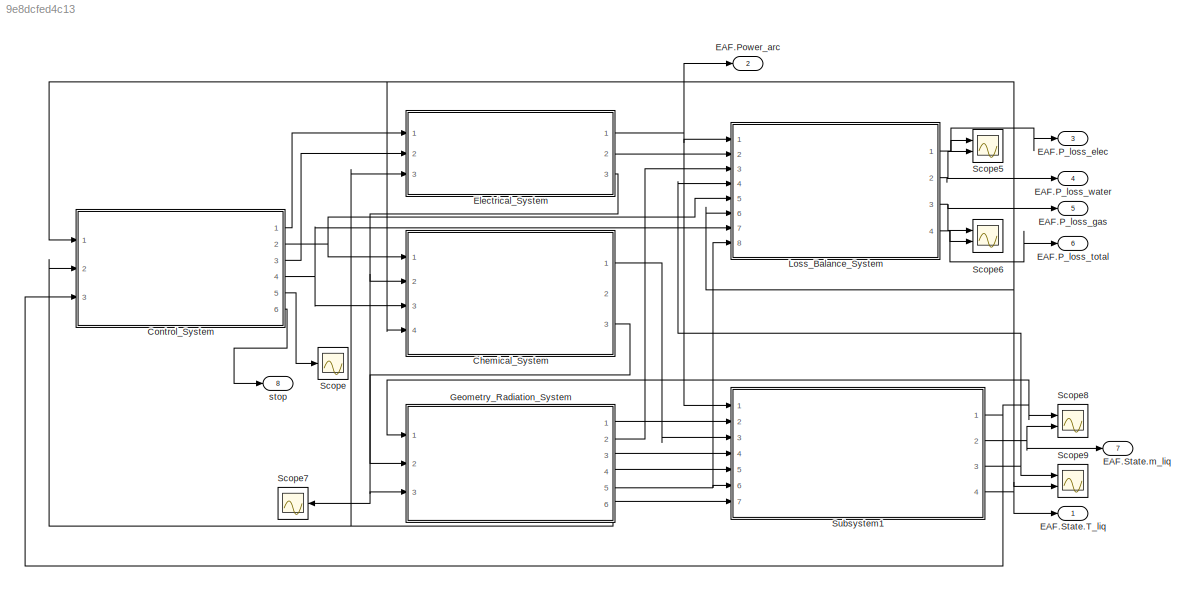
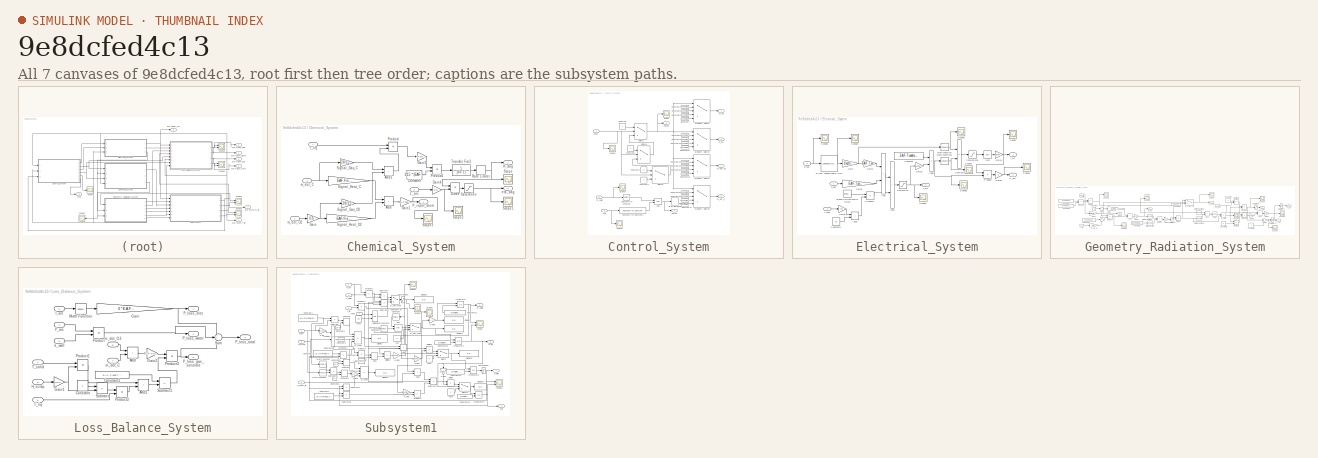
[diagram: thumbnail index - all 7 canvases of the model, root first then tree order]
MODEL slx_9e8dcfed4c13
KIND model
CONFIG AbsTol = 1e-1
CONFIG EnableMultiTasking = off
CONFIG FixedStep = 1
CONFIG MaxStep = 1
CONFIG MinStep = 0.5
CONFIG RelTol = 1e-1
CONFIG SampleTimeConstraint = Unconstrained
CONFIG SolverName = ode5
CONFIG StartTime = 0.0
CONFIG StopTime = 3600
BLOCK [SubSystem] Chemical_System
  Ports = [4, 3]
  RequestExecContextInheritance = off
BLOCK [Sum] Chemical_System/Add
  IconShape = rectangular
  Ports = [2, 1]
BLOCK [Sum] Chemical_System/Add1
  IconShape = rectangular
  Ports = [2, 1]
BLOCK [Constant] Chemical_System/Constant
  Value = 115 * (EAF.Fixed.mu_slag^1.2) / (EAF.Fixed.sigma_slag^0.2 * EAF.Fixed.rho_slag * EAF.Fixed.D_B^0.9)
BLOCK [Product] Chemical_System/Divide
  Inputs = */
  Ports = [2, 1]
  SaturateOnIntegerOverflow = on
BLOCK [Gain] Chemical_System/Gain
  Gain = 0.75
BLOCK [Gain] Chemical_System/Gain1
  Gain = EAF.Tunable.eta_pc
BLOCK [Gain] Chemical_System/Gain3
  Gain = (8.314 / 101325) / (0.028 * EAF.Fixed.A_furnace)
BLOCK [Gain] Chemical_System/Gain4
  Gain = 0.01
BLOCK [Outport] Chemical_System/H_slag
  Port = 2
BLOCK [Inport] Chemical_System/L_arc
  Port = 2
BLOCK [Outport] Chemical_System/P_input_chem
BLOCK [Product] Chemical_System/Product
  Ports = [2, 1]
BLOCK [Product] Chemical_System/Product1
  Ports = [2, 1]
BLOCK [RateLimiter] Chemical_System/Rate Limiter
  FallingSlewLimit = -0.0001
  InitialCondition = 0.15
  RisingSlewLimit = 0.0006
  SampleTimeMode = inherited
BLOCK [Saturate] Chemical_System/Saturation
  LowerLimit = 0.001
  UpperLimit = 0.98
BLOCK [Scope] Chemical_System/Scope
  Floating = off
  NumInputPorts = 1
  Ports = [1]
  ScopeSpecificationString = Simulink.scopes.TimeScopeBlockCfg('CurrentConfiguration', extmgr.ConfigurationSet(extmgr.Configuration('Core','General UI',true),extmgr.Configuration('Core','Source UI',true),extmgr.Configuration('Sources','WiredSimulink',true,'DataLoggingVariableName','ScopeData1'),extmgr.Configuration('Visuals','Time Domain',true,'SerializedDisplays',{struct('MinYLimReal','-0.03695','MaxYLimReal','0.33256','YLab...<+1523ch>
BLOCK [Scope] Chemical_System/Scope1
  Floating = off
  NumInputPorts = 1
  Ports = [1]
  ScopeSpecificationString = Simulink.scopes.TimeScopeBlockCfg('CurrentConfiguration', extmgr.ConfigurationSet(extmgr.Configuration('Core','General UI',true),extmgr.Configuration('Core','Source UI',true),extmgr.Configuration('Sources','WiredSimulink',true,'DataLoggingVariableName','ScopeData2'),extmgr.Configuration('Visuals','Time Domain',true,'SerializedDisplays',{struct('MinYLimReal','-0.12137','MaxYLimReal','1.10238','YLab...<+1488ch>
BLOCK [Scope] Chemical_System/Scope2
  Floating = off
  NumInputPorts = 1
  Ports = [1]
  ScopeSpecificationString = Simulink.scopes.TimeScopeBlockCfg('CurrentConfiguration', extmgr.ConfigurationSet(extmgr.Configuration('Core','General UI',true),extmgr.Configuration('Core','Source UI',true),extmgr.Configuration('Sources','WiredSimulink',true,'DataLoggingVariableName','ScopeData11'),extmgr.Configuration('Visuals','Time Domain',true,'SerializedDisplays',{struct('MinYLimReal','0.14796','MaxYLimReal','0.25728','YLab...<+1515ch>
BLOCK [Scope] Chemical_System/Scope3
  Floating = off
  NumInputPorts = 1
  Ports = [1]
  ScopeSpecificationString = Simulink.scopes.TimeScopeBlockCfg('CurrentConfiguration', extmgr.ConfigurationSet(extmgr.Configuration('Core','General UI',true),extmgr.Configuration('Core','Source UI',true),extmgr.Configuration('Sources','WiredSimulink',true,'DataLoggingVariableName','ScopeData13'),extmgr.Configuration('Visuals','Time Domain',true,'SerializedDisplays',{struct('MinYLimReal','-697500.00000','MaxYLimReal','6277500....<+1559ch>
BLOCK [Gain] Chemical_System/Signal_Gas_C
  Gain = 28/12
BLOCK [Gain] Chemical_System/Signal_Gas_O2
  Gain = 28/12
BLOCK [Gain] Chemical_System/Signal_Heat_C
  Gain = EAF.Fixed.dH_C_O
BLOCK [Gain] Chemical_System/Signal_Heat_O2
  Gain = EAF.Fixed.dH_C_O
BLOCK [Inport] Chemical_System/T_liq
  Port = 4
BLOCK [TransferFcn] Chemical_System/Transfer Fcn3
  Denominator = [60 1]
  Numerator = 1
BLOCK [Outport] Chemical_System/eta_slag
  Port = 3
BLOCK [Inport] Chemical_System/m_dot_C
  Port = 3
BLOCK [Inport] Chemical_System/m_dot_O2
BLOCK [SubSystem] Control_System
  Ports = [3, 6]
  RequestExecContextInheritance = off
BLOCK [Logic] Control_System/AND
  AllPortsSameDT = off
  IconShape = distinctive
  OutDataTypeStr = boolean
  Ports = [2, 1]
BLOCK [Inport] Control_System/Alpha
  Port = 2
BLOCK [Reference] Control_System/Compare To Constant  REF=simulink/Logic and Bit
Operations/Compare
To Constant
  Ports = [1, 1]
  SourceBlock = simulink/Logic and Bit\nOperations/Compare\nTo Constant
  SourceProductBaseCode = SL
  SourceType = Compare To Constant
BLOCK [Reference] Control_System/Compare To Constant1  REF=simulink/Logic and Bit
Operations/Compare
To Constant
  Ports = [1, 1]
  SourceBlock = simulink/Logic and Bit\nOperations/Compare\nTo Constant
  SourceProductBaseCode = SL
  SourceType = Compare To Constant
BLOCK [Constant] Control_System/Constant
BLOCK [Constant] Control_System/Constant1
  Value = 2
BLOCK [Constant] Control_System/Constant10
  Value = EAF.Control.Stage3.Z_set
BLOCK [Constant] Control_System/Constant11
  Value = EAF.Control.Stage4.Z_set
BLOCK [Constant] Control_System/Constant12
  Value = EAF.Control.Stage3.O2
BLOCK [Constant] Control_System/Constant13
  Value = EAF.Control.Stage4.O2
BLOCK [Constant] Control_System/Constant14
  Value = EAF.Control.Stage1.O2
BLOCK [Constant] Control_System/Constant15
  Value = EAF.Control.Stage2.O2
BLOCK [Constant] Control_System/Constant16
  Value = EAF.Control.Stage3.C
BLOCK [Constant] Control_System/Constant17
  Value = EAF.Control.Stage4.C
BLOCK [Constant] Control_System/Constant18
  Value = EAF.Control.Stage1.C
BLOCK [Constant] Control_System/Constant19
  Value = EAF.Control.Stage2.C
BLOCK [Constant] Control_System/Constant2
  Value = 3
BLOCK [Constant] Control_System/Constant3
  Value = 4
BLOCK [Constant] Control_System/Constant4
  Value = EAF.Control.Stage1.k_tap
BLOCK [Constant] Control_System/Constant5
  Value = EAF.Control.Stage2.k_tap
BLOCK [Constant] Control_System/Constant6
  Value = EAF.Control.Stage3.k_tap
BLOCK [Constant] Control_System/Constant7
  Value = EAF.Control.Stage4.k_tap
BLOCK [Constant] Control_System/Constant8
  Value = EAF.Control.Stage1.Z_set
BLOCK [Constant] Control_System/Constant9
  Value = EAF.Control.Stage2.Z_set
BLOCK [MultiPortSwitch] Control_System/Multiport Switch
  InputSameDT = off
  Inputs = 4
  Ports = [5, 1]
  SaturateOnIntegerOverflow = off
BLOCK [MultiPortSwitch] Control_System/Multiport Switch1
  InputSameDT = off
  Inputs = 4
  Ports = [5, 1]
  SaturateOnIntegerOverflow = off
BLOCK [MultiPortSwitch] Control_System/Multiport Switch2
  InputSameDT = off
  Inputs = 4
  Ports = [5, 1]
  SaturateOnIntegerOverflow = off
BLOCK [MultiPortSwitch] Control_System/Multiport Switch3
  InputSameDT = off
  Inputs = 4
  Ports = [5, 1]
  SaturateOnIntegerOverflow = off
BLOCK [Outport] Control_System/Output
  Port = 6
BLOCK [Outport] Control_System/Phase
  Port = 5
BLOCK [Scope] Control_System/Scope
  Floating = off
  NumInputPorts = 1
  Ports = [1]
  ScopeSpecificationString = Simulink.scopes.TimeScopeBlockCfg('CurrentConfiguration', extmgr.ConfigurationSet(extmgr.Configuration('Core','General UI',true),extmgr.Configuration('Core','Source UI',true),extmgr.Configuration('Sources','WiredSimulink',true,'DataLoggingVariableName','ScopeData12'),extmgr.Configuration('Visuals','Time Domain',true,'SerializedDisplays',{struct('MinYLimReal','0.625','MaxYLimReal','4.375','YLabelRe...<+1383ch>
BLOCK [Scope] Control_System/Scope1
  Floating = off
  NumInputPorts = 1
  Ports = [1]
  ScopeSpecificationString = Simulink.scopes.TimeScopeBlockCfg('CurrentConfiguration', extmgr.ConfigurationSet(extmgr.Configuration('Core','General UI',true),extmgr.Configuration('Core','Source UI',true),extmgr.Configuration('Sources','WiredSimulink',true,'DataLoggingVariableName','ScopeData1'),extmgr.Configuration('Visuals','Time Domain',true,'SerializedDisplays',{struct('MinYLimReal','-0.12489','MaxYLimReal','1.12499','YLab...<+1399ch>
BLOCK [Scope] Control_System/Scope2
  Floating = off
  NumInputPorts = 1
  Ports = [1]
  ScopeSpecificationString = Simulink.scopes.TimeScopeBlockCfg('CurrentConfiguration', extmgr.ConfigurationSet(extmgr.Configuration('Core','General UI',true),extmgr.Configuration('Core','Source UI',true),extmgr.Configuration('Sources','WiredSimulink',true,'DataLoggingVariableName','ScopeData7'),extmgr.Configuration('Visuals','Time Domain',true,'SerializedDisplays',{struct('MinYLimReal','-12498.92633','MaxYLimReal','112499.880...<+1515ch>
BLOCK [Scope] Control_System/Scope3
  Floating = off
  NumInputPorts = 1
  Ports = [1]
  ScopeSpecificationString = Simulink.scopes.TimeScopeBlockCfg('CurrentConfiguration', extmgr.ConfigurationSet(extmgr.Configuration('Core','General UI',true),extmgr.Configuration('Core','Source UI',true),extmgr.Configuration('Sources','WiredSimulink',true,'DataLoggingVariableName','ScopeData8'),extmgr.Configuration('Visuals','Time Domain',true,'SerializedDisplays',{struct('MinYLimReal','1549.64882','MaxYLimReal','2106.19153',...<+1536ch>
BLOCK [Stop] Control_System/Stop Simulation
BLOCK [Switch] Control_System/Switch
  Criteria = u2 > Threshold
  InputSameDT = off
  SaturateOnIntegerOverflow = off
  Threshold = 0.95
BLOCK [Switch] Control_System/Switch1
  Criteria = u2 > Threshold
  InputSameDT = off
  SaturateOnIntegerOverflow = off
  Threshold = 0.1
BLOCK [Switch] Control_System/Switch2
  Criteria = u2 > Threshold
  InputSameDT = off
  SaturateOnIntegerOverflow = off
  Threshold = 0.01
BLOCK [Inport] Control_System/T_liq
BLOCK [Outport] Control_System/Z_set
  Port = 3
BLOCK [Outport] Control_System/k_tap
BLOCK [Outport] Control_System/m_dot_C
  Port = 4
BLOCK [Outport] Control_System/m_dot_O2
  Port = 2
BLOCK [Inport] Control_System/m_solid
  Port = 3
BLOCK [Outport] EAF.P_loss_elec
  Port = 3
  SignalName = EAF.P_loss_elec
BLOCK [Outport] EAF.P_loss_gas
  Port = 5
  SignalName = EAF.P_loss_gas
BLOCK [Outport] EAF.P_loss_total
  Port = 6
  SignalName = EAF.P_loss_total
BLOCK [Outport] EAF.P_loss_water
  Port = 4
  SignalName = EAF.P_loss_water
BLOCK [Outport] EAF.Power_arc
  Port = 2
  SignalName = EAF.Power_arc
BLOCK [Outport] EAF.State.T_liq
BLOCK [Outport] EAF.State.m_liq
  Port = 7
  SignalName = EAF.State.m_liq
BLOCK [SubSystem] Electrical_System
  Ports = [3, 3]
  RequestExecContextInheritance = off
BLOCK [Sum] Electrical_System/Add
  IconShape = rectangular
  Ports = [2, 1]
BLOCK [Sum] Electrical_System/Add1
  IconShape = rectangular
  Ports = [2, 1]
BLOCK [Sum] Electrical_System/Add2
  IconShape = rectangular
  Ports = [2, 1]
BLOCK [Sum] Electrical_System/Add3
  IconShape = rectangular
  Ports = [2, 1]
BLOCK [Inport] Electrical_System/Alpha
  Port = 3
BLOCK [Reference] Electrical_System/Band-Limited White Noise  REF=simulink/Sources/Band-Limited
White Noise
  Ports = [0, 1]
  SourceBlock = simulink/Sources/Band-Limited\nWhite Noise
  SourceProductBaseCode = SL
  SourceType = Band-Limited White Noise.
BLOCK [Constant] Electrical_System/Constant
  Value = EAF.Tunable.V_an_cat
BLOCK [Constant] Electrical_System/Constant1
  Value = 0.1
BLOCK [LookupNDDirect] Electrical_System/Direct Lookup Table (n-D)
  NumberOfTableDimensions = 1
  Ports = [1, 1]
  Table = EAF.Fixed.Tap_Lookup_V
BLOCK [Gain] Electrical_System/Gain
  Gain = 1/sqrt(3)
BLOCK [Gain] Electrical_System/Gain1
  Gain = EAF.Tunable.m_V
BLOCK [Gain] Electrical_System/Gain2
  Gain = EAF.Tunable.m_Z
BLOCK [Gain] Electrical_System/Gain3
  Gain = EAF.Tunable.E_field
BLOCK [Gain] Electrical_System/Gain4
  Gain = 1/EAF.Fixed.X_sys
BLOCK [Gain] Electrical_System/Gain5
  Gain = 3
BLOCK [Gain] Electrical_System/Gain6
  Gain = 0.9
BLOCK [Outport] Electrical_System/I_arc
  Port = 2
BLOCK [Outport] Electrical_System/L_arc
  Port = 3
BLOCK [Math] Electrical_System/Math Function
  Operator = square
  Ports = [1, 1]
BLOCK [Math] Electrical_System/Math Function1
  Operator = square
  Ports = [1, 1]
BLOCK [Outport] Electrical_System/P_arc
BLOCK [Product] Electrical_System/Product
  Ports = [2, 1]
BLOCK [Product] Electrical_System/Product1
  Ports = [2, 1]
BLOCK [Saturate] Electrical_System/Saturation
  LowerLimit = 0.01
  UpperLimit = inf
BLOCK [Saturate] Electrical_System/Saturation1
  LowerLimit = 0.01
  UpperLimit = inf
BLOCK [Scope] Electrical_System/Scope
  Floating = off
  NumInputPorts = 1
  Ports = [1]
  ScopeSpecificationString = Simulink.scopes.TimeScopeBlockCfg('CurrentConfiguration', extmgr.ConfigurationSet(extmgr.Configuration('Core','General UI',true),extmgr.Configuration('Core','Source UI',true),extmgr.Configuration('Sources','WiredSimulink',true),extmgr.Configuration('Visuals','Time Domain',true,'SerializedDisplays',{struct('MinYLimReal','33952.54267','MaxYLimReal','96518.19802','YLabelReal','','MinYLimMag','33952.5...<+1386ch>
BLOCK [Scope] Electrical_System/Scope1
  Floating = off
  NumInputPorts = 1
  Ports = [1]
  ScopeSpecificationString = Simulink.scopes.TimeScopeBlockCfg('CurrentConfiguration', extmgr.ConfigurationSet(extmgr.Configuration('Core','General UI',true),extmgr.Configuration('Core','Source UI',true),extmgr.Configuration('Sources','WiredSimulink',true,'DataLoggingVariableName','ScopeData1'),extmgr.Configuration('Visuals','Time Domain',true,'SerializedDisplays',{struct('MinYLimReal','43149395.28792','MaxYLimReal','10694925...<+1499ch>
BLOCK [Scope] Electrical_System/Scope2
  Floating = off
  NumInputPorts = 1
  Ports = [1]
  ScopeSpecificationString = Simulink.scopes.TimeScopeBlockCfg('CurrentConfiguration', extmgr.ConfigurationSet(extmgr.Configuration('Core','General UI',true),extmgr.Configuration('Core','Source UI',true),extmgr.Configuration('Sources','WiredSimulink',true,'DataLoggingVariableName','ScopeData1'),extmgr.Configuration('Visuals','Time Domain',true,'SerializedDisplays',{struct('MinYLimReal','1.625','MaxYLimReal','5.375','YLabelRea...<+1493ch>
BLOCK [Scope] Electrical_System/Scope3
  Floating = off
  NumInputPorts = 1
  Ports = [1]
  ScopeSpecificationString = Simulink.scopes.TimeScopeBlockCfg('CurrentConfiguration', extmgr.ConfigurationSet(extmgr.Configuration('Core','General UI',true),extmgr.Configuration('Core','Source UI',true),extmgr.Configuration('Sources','WiredSimulink',true,'DataLoggingVariableName','ScopeData2'),extmgr.Configuration('Visuals','Time Domain',true,'SerializedDisplays',{struct('MinYLimReal','575.00000','MaxYLimReal','825.00000','Y...<+1548ch>
BLOCK [Scope] Electrical_System/Scope4
  Floating = off
  NumInputPorts = 1
  Ports = [1]
  ScopeSpecificationString = Simulink.scopes.TimeScopeBlockCfg('CurrentConfiguration', extmgr.ConfigurationSet(extmgr.Configuration('Core','General UI',true),extmgr.Configuration('Core','Source UI',true),extmgr.Configuration('Sources','WiredSimulink',true,'DataLoggingVariableName','ScopeData4'),extmgr.Configuration('Visuals','Time Domain',true,'SerializedDisplays',{struct('MinYLimReal','14.79611','MaxYLimReal','25.72823','YLa...<+1406ch>
BLOCK [Scope] Electrical_System/Scope5
  Floating = off
  NumInputPorts = 1
  Ports = [1]
  ScopeSpecificationString = Simulink.scopes.TimeScopeBlockCfg('CurrentConfiguration', extmgr.ConfigurationSet(extmgr.Configuration('Core','General UI',true),extmgr.Configuration('Core','Source UI',true),extmgr.Configuration('Sources','WiredSimulink',true,'DataLoggingVariableName','ScopeData3'),extmgr.Configuration('Visuals','Time Domain',true,'SerializedDisplays',{struct('MinYLimReal','259.16197','MaxYLimReal','422.05057','Y...<+1527ch>
BLOCK [Scope] Electrical_System/Scope6
  Floating = off
  NumInputPorts = 1
  Ports = [1]
  ScopeSpecificationString = Simulink.scopes.TimeScopeBlockCfg('CurrentConfiguration', extmgr.ConfigurationSet(extmgr.Configuration('Core','General UI',true),extmgr.Configuration('Core','Source UI',true),extmgr.Configuration('Sources','WiredSimulink',true,'DataLoggingVariableName','ScopeData4'),extmgr.Configuration('Visuals','Time Domain',true,'SerializedDisplays',{struct('MinYLimReal','108333.33333','MaxYLimReal','225000.000...<+1560ch>
BLOCK [Scope] Electrical_System/Scope7
  Floating = off
  NumInputPorts = 1
  Ports = [1]
  ScopeSpecificationString = Simulink.scopes.TimeScopeBlockCfg('CurrentConfiguration', extmgr.ConfigurationSet(extmgr.Configuration('Core','General UI',true),extmgr.Configuration('Core','Source UI',true),extmgr.Configuration('Sources','WiredSimulink',true,'DataLoggingVariableName','ScopeData5'),extmgr.Configuration('Visuals','Time Domain',true,'SerializedDisplays',{struct('MinYLimReal','64722.94774','MaxYLimReal','176123.3965...<+1557ch>
BLOCK [Sqrt] Electrical_System/Sqrt
BLOCK [Sum] Electrical_System/Subtract
  IconShape = rectangular
  Inputs = +-
  Ports = [2, 1]
BLOCK [Inport] Electrical_System/Z_set
  Port = 2
BLOCK [Inport] Electrical_System/k_tap
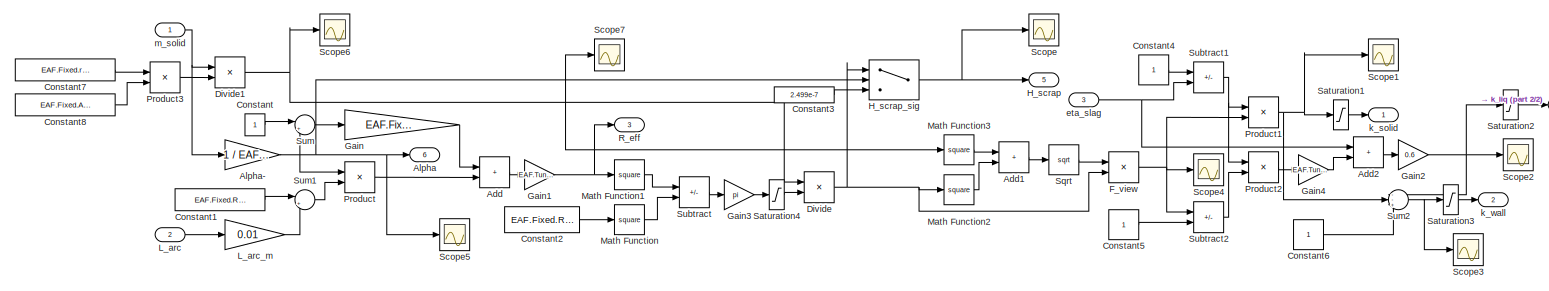
[diagram: Geometry_Radiation_System - part 1/2, most of the canvas]
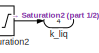
[diagram: Geometry_Radiation_System - part 2/2, middle right region]
BLOCK [SubSystem] Geometry_Radiation_System
  Ports = [3, 6]
  RequestExecContextInheritance = off
BLOCK [Sum] Geometry_Radiation_System/Add
  IconShape = rectangular
  Ports = [2, 1]
BLOCK [Sum] Geometry_Radiation_System/Add1
  IconShape = rectangular
  Ports = [2, 1]
BLOCK [Sum] Geometry_Radiation_System/Add2
  IconShape = rectangular
  Ports = [2, 1]
BLOCK [Outport] Geometry_Radiation_System/Alpha
  Port = 6
BLOCK [Gain] Geometry_Radiation_System/Alpha-
  Gain = 1 / EAF.State.m_solid_0
BLOCK [Constant] Geometry_Radiation_System/Constant
BLOCK [Constant] Geometry_Radiation_System/Constant1
  Value = EAF.Fixed.R_ele
BLOCK [Constant] Geometry_Radiation_System/Constant2
  Value = EAF.Fixed.R_fur
BLOCK [Constant] Geometry_Radiation_System/Constant3
  Value = 2.499e-7
BLOCK [Constant] Geometry_Radiation_System/Constant4
BLOCK [Constant] Geometry_Radiation_System/Constant5
BLOCK [Constant] Geometry_Radiation_System/Constant6
BLOCK [Constant] Geometry_Radiation_System/Constant7
  Value = EAF.Fixed.rho_solid
BLOCK [Constant] Geometry_Radiation_System/Constant8
  Value = EAF.Fixed.A_furnace
BLOCK [Product] Geometry_Radiation_System/Divide
  Inputs = */
  Ports = [2, 1]
BLOCK [Product] Geometry_Radiation_System/Divide1
  Inputs = */
  Ports = [2, 1]
BLOCK [Product] Geometry_Radiation_System/F_view
  Inputs = /*
  Ports = [2, 1]
BLOCK [Gain] Geometry_Radiation_System/Gain
  Gain = EAF.Fixed.R_fur
BLOCK [Gain] Geometry_Radiation_System/Gain1
  Gain = EAF.Tunable.k_geo
BLOCK [Gain] Geometry_Radiation_System/Gain2
  Gain = 0.6
BLOCK [Gain] Geometry_Radiation_System/Gain3
  Gain = pi
BLOCK [Gain] Geometry_Radiation_System/Gain4
  Gain = EAF.Tunable.k_bottom
BLOCK [Outport] Geometry_Radiation_System/H_scrap
  Port = 5
BLOCK [Switch] Geometry_Radiation_System/H_scrap_sig
  Criteria = u2 > Threshold
  InputSameDT = off
  SaturateOnIntegerOverflow = off
BLOCK [Inport] Geometry_Radiation_System/L_arc
  Port = 2
BLOCK [Gain] Geometry_Radiation_System/L_arc_m
  Gain = 0.01
BLOCK [Math] Geometry_Radiation_System/Math Function
  Operator = square
  Ports = [1, 1]
BLOCK [Math] Geometry_Radiation_System/Math Function1
  Operator = square
  Ports = [1, 1]
BLOCK [Math] Geometry_Radiation_System/Math Function2
  Operator = square
  Ports = [1, 1]
BLOCK [Math] Geometry_Radiation_System/Math Function3
  Operator = square
  Ports = [1, 1]
BLOCK [Product] Geometry_Radiation_System/Product
  Ports = [2, 1]
BLOCK [Product] Geometry_Radiation_System/Product1
  Ports = [2, 1]
BLOCK [Product] Geometry_Radiation_System/Product2
  Ports = [2, 1]
BLOCK [Product] Geometry_Radiation_System/Product3
  Ports = [2, 1]
BLOCK [Outport] Geometry_Radiation_System/R_eff
  Port = 3
BLOCK [Saturate] Geometry_Radiation_System/Saturation1
  LowerLimit = 0.0001
  UpperLimit = 1
BLOCK [Saturate] Geometry_Radiation_System/Saturation2
  LowerLimit = 0.0001
  UpperLimit = 1
BLOCK [Saturate] Geometry_Radiation_System/Saturation3
  LowerLimit = 0.0001
  UpperLimit = 1
BLOCK [Saturate] Geometry_Radiation_System/Saturation4
  LowerLimit = 0.0001
  UpperLimit = 1
BLOCK [Scope] Geometry_Radiation_System/Scope
  Floating = off
  NumInputPorts = 1
  Ports = [1]
  ScopeSpecificationString = Simulink.scopes.TimeScopeBlockCfg('CurrentConfiguration', extmgr.ConfigurationSet(extmgr.Configuration('Core','General UI',true),extmgr.Configuration('Core','Source UI',true),extmgr.Configuration('Sources','WiredSimulink',true,'DataLoggingVariableName','ScopeData3'),extmgr.Configuration('Visuals','Time Domain',true,'SerializedDisplays',{struct('MinYLimReal','-0.23079','MaxYLimReal','3.30044','YLab...<+1533ch>
BLOCK [Scope] Geometry_Radiation_System/Scope1
  Floating = off
  NumInputPorts = 1
  Ports = [1]
  ScopeSpecificationString = Simulink.scopes.TimeScopeBlockCfg('CurrentConfiguration', extmgr.ConfigurationSet(extmgr.Configuration('Core','General UI',true),extmgr.Configuration('Core','Source UI',true),extmgr.Configuration('Sources','WiredSimulink',true,'DataLoggingVariableName','ScopeData4'),extmgr.Configuration('Visuals','Time Domain',true,'SerializedDisplays',{struct('MinYLimReal','-0.11702','MaxYLimReal','1.10583','YLab...<+1563ch>
BLOCK [Scope] Geometry_Radiation_System/Scope2
  Floating = off
  NumInputPorts = 1
  Ports = [1]
  ScopeSpecificationString = Simulink.scopes.TimeScopeBlockCfg('CurrentConfiguration', extmgr.ConfigurationSet(extmgr.Configuration('Core','General UI',true),extmgr.Configuration('Core','Source UI',true),extmgr.Configuration('Sources','WiredSimulink',true,'DataLoggingVariableName','ScopeData5'),extmgr.Configuration('Visuals','Time Domain',true,'SerializedDisplays',{struct('MinYLimReal','-0.07193','MaxYLimReal','0.66263','YLab...<+1483ch>
BLOCK [Scope] Geometry_Radiation_System/Scope3
  Floating = off
  NumInputPorts = 1
  Ports = [1]
  ScopeSpecificationString = Simulink.scopes.TimeScopeBlockCfg('CurrentConfiguration', extmgr.ConfigurationSet(extmgr.Configuration('Core','General UI',true),extmgr.Configuration('Core','Source UI',true),extmgr.Configuration('Sources','WiredSimulink',true,'DataLoggingVariableName','ScopeData6'),extmgr.Configuration('Visuals','Time Domain',true,'SerializedDisplays',{struct('MinYLimReal','-0.07321','MaxYLimReal','0.80821','YLab...<+1482ch>
BLOCK [Scope] Geometry_Radiation_System/Scope4
  Floating = off
  NumInputPorts = 1
  Ports = [1]
  ScopeSpecificationString = Simulink.scopes.TimeScopeBlockCfg('CurrentConfiguration', extmgr.ConfigurationSet(extmgr.Configuration('Core','General UI',true),extmgr.Configuration('Core','Source UI',true),extmgr.Configuration('Sources','WiredSimulink',true,'DataLoggingVariableName','ScopeData11'),extmgr.Configuration('Visuals','Time Domain',true,'SerializedDisplays',{struct('MinYLimReal','-0.09999','MaxYLimReal','1.10503','YLa...<+1518ch>
BLOCK [Scope] Geometry_Radiation_System/Scope5
  Floating = off
  NumInputPorts = 1
  Ports = [1]
  ScopeSpecificationString = Simulink.scopes.TimeScopeBlockCfg('CurrentConfiguration', extmgr.ConfigurationSet(extmgr.Configuration('Core','General UI',true),extmgr.Configuration('Core','Source UI',true),extmgr.Configuration('Sources','WiredSimulink',true,'DataLoggingVariableName','ScopeData12'),extmgr.Configuration('Visuals','Time Domain',true,'SerializedDisplays',{struct('MinYLimReal','-0.125','MaxYLimReal','1.125','YLabelR...<+1492ch>
BLOCK [Scope] Geometry_Radiation_System/Scope6
  Floating = off
  NumInputPorts = 1
  Ports = [1]
  ScopeSpecificationString = Simulink.scopes.TimeScopeBlockCfg('CurrentConfiguration', extmgr.ConfigurationSet(extmgr.Configuration('Core','General UI',true),extmgr.Configuration('Core','Source UI',true),extmgr.Configuration('Sources','WiredSimulink',true,'DataLoggingVariableName','ScopeData4'),extmgr.Configuration('Visuals','Time Domain',true,'SerializedDisplays',{struct('MinYLimReal','-0.12446','MaxYLimReal','3.28862','YLab...<+1529ch>
BLOCK [Scope] Geometry_Radiation_System/Scope7
  Floating = off
  NumInputPorts = 1
  Ports = [1]
  ScopeSpecificationString = Simulink.scopes.TimeScopeBlockCfg('CurrentConfiguration', extmgr.ConfigurationSet(extmgr.Configuration('Core','General UI',true),extmgr.Configuration('Core','Source UI',true),extmgr.Configuration('Sources','WiredSimulink',true,'DataLoggingVariableName','ScopeData5'),extmgr.Configuration('Visuals','Time Domain',true,'SerializedDisplays',{struct('MinYLimReal','0.1707','MaxYLimReal','2.64748','YLabel...<+1477ch>
BLOCK [Sqrt] Geometry_Radiation_System/Sqrt
BLOCK [Sum] Geometry_Radiation_System/Subtract
  IconShape = rectangular
  Inputs = -+
  Ports = [2, 1]
BLOCK [Sum] Geometry_Radiation_System/Subtract1
  IconShape = rectangular
  Inputs = +-
  Ports = [2, 1]
BLOCK [Sum] Geometry_Radiation_System/Subtract2
  IconShape = rectangular
  Inputs = -+
  Ports = [2, 1]
BLOCK [Sum] Geometry_Radiation_System/Sum
  Inputs = |+-
  Ports = [2, 1]
BLOCK [Sum] Geometry_Radiation_System/Sum1
  Inputs = |++
  Ports = [2, 1]
BLOCK [Sum] Geometry_Radiation_System/Sum2
  Inputs = --+
  Ports = [3, 1]
BLOCK [Inport] Geometry_Radiation_System/eta_slag
  Port = 3
BLOCK [Outport] Geometry_Radiation_System/k_liq
  Port = 4
BLOCK [Outport] Geometry_Radiation_System/k_solid
BLOCK [Outport] Geometry_Radiation_System/k_wall
  Port = 2
BLOCK [Inport] Geometry_Radiation_System/m_solid
BLOCK [SubSystem] Loss_Balance_System
  Ports = [8, 4]
  RequestExecContextInheritance = off
BLOCK [Sum] Loss_Balance_System/Add
  IconShape = rectangular
  Ports = [2, 1]
BLOCK [Sum] Loss_Balance_System/Add1
  IconShape = rectangular
  Ports = [2, 1]
BLOCK [Constant] Loss_Balance_System/Constant
BLOCK [Constant] Loss_Balance_System/Constant1
  Value = EAF.Fixed.T_amb
BLOCK [Gain] Loss_Balance_System/Gain
  Gain = 3 * EAF.Fixed.R_sys
BLOCK [Gain] Loss_Balance_System/Gain1
  Gain = 1/2.0
BLOCK [Gain] Loss_Balance_System/Gain2
  Gain = EAF.Fixed.Cp_gas
BLOCK [Inport] Loss_Balance_System/H_scrap
  Port = 8
BLOCK [Inport] Loss_Balance_System/I_arc
  Port = 2
BLOCK [Math] Loss_Balance_System/Math Function
  Operator = square
  Ports = [1, 1]
BLOCK [Inport] Loss_Balance_System/P_arc
BLOCK [Outport] Loss_Balance_System/P_loss_elec
BLOCK [Outport] Loss_Balance_System/P_loss_gas_sensible
  Port = 3
BLOCK [Outport] Loss_Balance_System/P_loss_total
  Port = 4
BLOCK [Outport] Loss_Balance_System/P_loss_water
  Port = 2
BLOCK [Product] Loss_Balance_System/Product
  Ports = [2, 1]
BLOCK [Product] Loss_Balance_System/Product1
  Ports = [2, 1]
BLOCK [Product] Loss_Balance_System/Product2
  Ports = [2, 1]
BLOCK [Product] Loss_Balance_System/Product3
  Ports = [2, 1]
BLOCK [Sum] Loss_Balance_System/Subtract
  IconShape = rectangular
  Inputs = +-
  Ports = [2, 1]
BLOCK [Sum] Loss_Balance_System/Subtract1
  IconShape = rectangular
  Inputs = -+
  Ports = [2, 1]
BLOCK [Sum] Loss_Balance_System/Sum
  Inputs = +++
  Ports = [3, 1]
BLOCK [Inport] Loss_Balance_System/T_liq
  Port = 6
BLOCK [Inport] Loss_Balance_System/T_solid
  Port = 4
BLOCK [Inport] Loss_Balance_System/k_wall
  Port = 3
BLOCK [Inport] Loss_Balance_System/m_dot_C
  Port = 7
BLOCK [Inport] Loss_Balance_System/m_dot_O2
  Port = 5
BLOCK [Scope] Scope
  Floating = off
  NumInputPorts = 1
  Ports = [1]
  ScopeSpecificationString = Simulink.scopes.TimeScopeBlockCfg('CurrentConfiguration', extmgr.ConfigurationSet(extmgr.Configuration('Core','General UI',true),extmgr.Configuration('Core','Source UI',true),extmgr.Configuration('Sources','WiredSimulink',true,'DataLoggingVariableName','ScopeData6'),extmgr.Configuration('Visuals','Time Domain',true,'SerializedDisplays',{struct('MinYLimReal','0.625','MaxYLimReal','4.375','YLabelRea...<+1476ch>
BLOCK [Scope] Scope5
  Floating = off
  NumInputPorts = 2
  Ports = [2]
  ScopeSpecificationString = Simulink.scopes.TimeScopeBlockCfg('CurrentConfiguration', extmgr.ConfigurationSet(extmgr.Configuration('Core','General UI',true),extmgr.Configuration('Core','Source UI',true),extmgr.Configuration('Sources','WiredSimulink',true,'DataLoggingVariableName','ScopeData8'),extmgr.Configuration('Visuals','Time Domain',true,'SerializedDisplays',{struct('MinYLimReal','720426.27907','MaxYLimReal','8067114.93...<+2186ch>
BLOCK [Scope] Scope6
  Floating = off
  NumInputPorts = 2
  Ports = [2]
  ScopeSpecificationString = Simulink.scopes.TimeScopeBlockCfg('CurrentConfiguration', extmgr.ConfigurationSet(extmgr.Configuration('Core','General UI',true),extmgr.Configuration('Core','Source UI',true),extmgr.Configuration('Sources','WiredSimulink',true,'DataLoggingVariableName','ScopeData9'),extmgr.Configuration('Visuals','Time Domain',true,'SerializedDisplays',{struct('MinYLimReal','-21904800.69644','MaxYLimReal','6639234...<+2194ch>
BLOCK [Scope] Scope7
  Floating = off
  NumInputPorts = 1
  Ports = [1]
  ScopeSpecificationString = Simulink.scopes.TimeScopeBlockCfg('CurrentConfiguration', extmgr.ConfigurationSet(extmgr.Configuration('Core','General UI',true),extmgr.Configuration('Core','Source UI',true),extmgr.Configuration('Sources','WiredSimulink',true,'DataLoggingVariableName','ScopeData10'),extmgr.Configuration('Visuals','Time Domain',true,'SerializedDisplays',{struct('MinYLimReal','-0.12137','MaxYLimReal','1.10238','YLa...<+1521ch>
BLOCK [Scope] Scope8
  Floating = off
  NumInputPorts = 2
  Ports = [2]
  ScopeSpecificationString = Simulink.scopes.TimeScopeBlockCfg('CurrentConfiguration', extmgr.ConfigurationSet(extmgr.Configuration('Core','General UI',true),extmgr.Configuration('Core','Source UI',true),extmgr.Configuration('Sources','WiredSimulink',true,'DataLoggingVariableName','ScopeData12'),extmgr.Configuration('Visuals','Time Domain',true,'SerializedDisplays',{struct('MinYLimReal','-12499.0078','MaxYLimReal','112499.889...<+2160ch>
BLOCK [Scope] Scope9
  Floating = off
  NumInputPorts = 2
  Ports = [2]
  ScopeSpecificationString = Simulink.scopes.TimeScopeBlockCfg('CurrentConfiguration', extmgr.ConfigurationSet(extmgr.Configuration('Core','General UI',true),extmgr.Configuration('Core','Source UI',true),extmgr.Configuration('Sources','WiredSimulink',true,'DataLoggingVariableName','ScopeData13'),extmgr.Configuration('Visuals','Time Domain',true,'SerializedDisplays',{struct('MinYLimReal','109.025','MaxYLimReal','2000.275','YLa...<+2176ch>
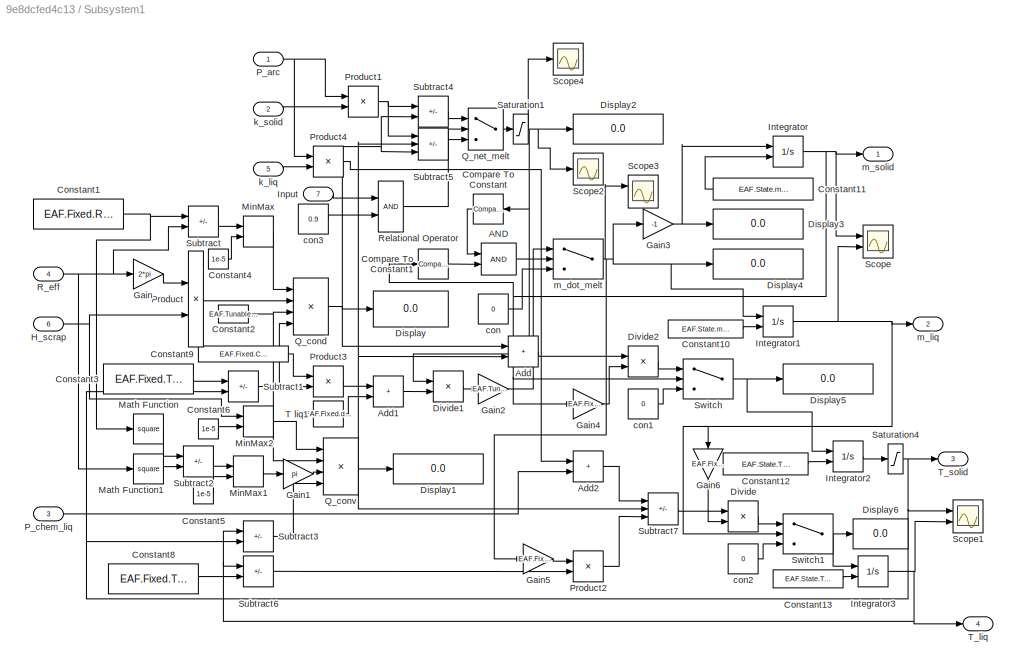
BLOCK [SubSystem] Subsystem1
  Ports = [7, 4]
  RequestExecContextInheritance = off
BLOCK [Logic] Subsystem1/AND
  AllPortsSameDT = off
  IconShape = distinctive
  OutDataTypeStr = boolean
  Ports = [2, 1]
BLOCK [Sum] Subsystem1/Add
  IconShape = rectangular
  Ports = [2, 1]
BLOCK [Sum] Subsystem1/Add1
  IconShape = rectangular
  Ports = [2, 1]
BLOCK [Sum] Subsystem1/Add2
  IconShape = rectangular
  Ports = [2, 1]
BLOCK [Reference] Subsystem1/Compare To Constant  REF=simulink/Logic and Bit
Operations/Compare
To Constant
  Ports = [1, 1]
  SourceBlock = simulink/Logic and Bit\nOperations/Compare\nTo Constant
  SourceProductBaseCode = SL
  SourceType = Compare To Constant
BLOCK [Reference] Subsystem1/Compare To Constant1  REF=simulink/Logic and Bit
Operations/Compare
To Constant
  Ports = [1, 1]
  SourceBlock = simulink/Logic and Bit\nOperations/Compare\nTo Constant
  SourceProductBaseCode = SL
  SourceType = Compare To Constant
BLOCK [Constant] Subsystem1/Constant1
  Value = EAF.Fixed.R_fur
BLOCK [Constant] Subsystem1/Constant10
  Value = EAF.State.m_liq
BLOCK [Constant] Subsystem1/Constant11
  Value = EAF.State.m_solid_0
BLOCK [Constant] Subsystem1/Constant12
  Value = EAF.State.T_solid
BLOCK [Constant] Subsystem1/Constant13
  Value = EAF.State.T_liq
BLOCK [Constant] Subsystem1/Constant2
  Value = EAF.Tunable.k_sm
BLOCK [Constant] Subsystem1/Constant3
  Value = EAF.Fixed.T_f
BLOCK [Constant] Subsystem1/Constant4
  Value = 1e-5
BLOCK [Constant] Subsystem1/Constant5
  Value = 1e-5
BLOCK [Constant] Subsystem1/Constant6
  Value = 1e-5
BLOCK [Constant] Subsystem1/Constant8
  Value = EAF.Fixed.T_f
BLOCK [Constant] Subsystem1/Constant9
  Value = EAF.Fixed.Cp_solid
BLOCK [Display] Subsystem1/Display
  Decimation = 1
  Ports = [1]
BLOCK [Display] Subsystem1/Display1
  Decimation = 1
  Ports = [1]
BLOCK [Display] Subsystem1/Display2
  Decimation = 1
  Ports = [1]
BLOCK [Display] Subsystem1/Display3
  Decimation = 1
  Ports = [1]
BLOCK [Display] Subsystem1/Display4
  Decimation = 1
  Ports = [1]
BLOCK [Display] Subsystem1/Display5
  Decimation = 1
  Ports = [1]
BLOCK [Display] Subsystem1/Display6
  Decimation = 1
  Ports = [1]
BLOCK [Product] Subsystem1/Divide
  Inputs = */
  Ports = [2, 1]
BLOCK [Product] Subsystem1/Divide1
  Inputs = */
  Ports = [2, 1]
BLOCK [Product] Subsystem1/Divide2
  Inputs = */
  Ports = [2, 1]
BLOCK [Gain] Subsystem1/Gain
  Gain = 2*pi
BLOCK [Gain] Subsystem1/Gain1
  Gain = pi
BLOCK [Gain] Subsystem1/Gain2
  Gain = EAF.Tunable.k_melt
BLOCK [Gain] Subsystem1/Gain3
  Gain = -1
BLOCK [Gain] Subsystem1/Gain4
  Gain = EAF.Fixed.Cp_solid
BLOCK [Gain] Subsystem1/Gain5
  Gain = EAF.Fixed.Cp_liq
BLOCK [Gain] Subsystem1/Gain6
  Gain = EAF.Fixed.Cp_liq
  NameLocation = right
BLOCK [Inport] Subsystem1/H_scrap
  Port = 6
BLOCK [Inport] Subsystem1/Input
  Port = 7
BLOCK [Integrator] Subsystem1/Integrator
  InitialConditionSource = external
  Ports = [2, 1]
BLOCK [Integrator] Subsystem1/Integrator1
  InitialCondition = EAF.State.m_liq
  InitialConditionSource = external
  Ports = [2, 1]
BLOCK [Integrator] Subsystem1/Integrator2
  InitialConditionSource = external
  Ports = [2, 1]
BLOCK [Integrator] Subsystem1/Integrator3
  InitialConditionSource = external
  Ports = [2, 1]
BLOCK [Math] Subsystem1/Math Function
  Operator = square
  Ports = [1, 1]
BLOCK [Math] Subsystem1/Math Function1
  Operator = square
  Ports = [1, 1]
BLOCK [MinMax] Subsystem1/MinMax
  Function = max
  Inputs = 2
  Ports = [2, 1]
BLOCK [MinMax] Subsystem1/MinMax1
  Function = max
  Inputs = 2
  Ports = [2, 1]
BLOCK [MinMax] Subsystem1/MinMax2
  Function = max
  Inputs = 2
  Ports = [2, 1]
BLOCK [Inport] Subsystem1/P_arc
BLOCK [Inport] Subsystem1/P_chem_liq
  Port = 3
BLOCK [Product] Subsystem1/Product
  Ports = [2, 1]
BLOCK [Product] Subsystem1/Product1
  Ports = [2, 1]
BLOCK [Product] Subsystem1/Product2
  Ports = [2, 1]
BLOCK [Product] Subsystem1/Product3
  Ports = [2, 1]
BLOCK [Product] Subsystem1/Product4
  Ports = [2, 1]
BLOCK [Product] Subsystem1/Q_cond
  Inputs = /***
  Ports = [4, 1]
BLOCK [Product] Subsystem1/Q_conv
  Inputs = /***
  Ports = [4, 1]
BLOCK [Switch] Subsystem1/Q_net_melt
  Criteria = u2 > Threshold
  InputSameDT = off
  SaturateOnIntegerOverflow = off
BLOCK [Inport] Subsystem1/R_eff
  Port = 4
BLOCK [RelationalOperator] Subsystem1/Relational Operator
  InputSameDT = off
  OutDataTypeStr = boolean
  Ports = [2, 1]
  RndMeth = Simplest
BLOCK [Saturate] Subsystem1/Saturation1
  LowerLimit = 0
  UpperLimit = inf
BLOCK [Saturate] Subsystem1/Saturation4
  LowerLimit = 0
  UpperLimit = EAF.Fixed.T_f
BLOCK [Scope] Subsystem1/Scope
  Floating = off
  NumInputPorts = 2
  Ports = [2]
  ScopeSpecificationString = Simulink.scopes.TimeScopeBlockCfg('CurrentConfiguration', extmgr.ConfigurationSet(extmgr.Configuration('Core','General UI',true),extmgr.Configuration('Core','Source UI',true),extmgr.Configuration('Sources','WiredSimulink',true,'DataLoggingVariableName','ScopeData1'),extmgr.Configuration('Visuals','Time Domain',true,'SerializedDisplays',{struct('MinYLimReal','-12498.92633','MaxYLimReal','112499.880...<+2071ch>
BLOCK [Scope] Subsystem1/Scope1
  Floating = off
  NumInputPorts = 2
  Ports = [2]
  ScopeSpecificationString = Simulink.scopes.TimeScopeBlockCfg('CurrentConfiguration', extmgr.ConfigurationSet(extmgr.Configuration('Core','General UI',true),extmgr.Configuration('Core','Source UI',true),extmgr.Configuration('Sources','WiredSimulink',true,'DataLoggingVariableName','ScopeData2'),extmgr.Configuration('Visuals','Time Domain',true,'SerializedDisplays',{struct('MinYLimReal','109.025','MaxYLimReal','2000.275','YLab...<+2102ch>
BLOCK [Scope] Subsystem1/Scope2
  Floating = off
  NumInputPorts = 1
  Ports = [1]
  ScopeSpecificationString = Simulink.scopes.TimeScopeBlockCfg('CurrentConfiguration', extmgr.ConfigurationSet(extmgr.Configuration('Core','General UI',true),extmgr.Configuration('Core','Source UI',true),extmgr.Configuration('Sources','WiredSimulink',true,'DataLoggingVariableName','ScopeData3'),extmgr.Configuration('Visuals','Time Domain',true,'SerializedDisplays',{struct('MinYLimReal','-11605715.60988','MaxYLimReal','1047233...<+1428ch>
BLOCK [Scope] Subsystem1/Scope3
  Floating = off
  NumInputPorts = 2
  Ports = [2]
  ScopeSpecificationString = Simulink.scopes.TimeScopeBlockCfg('CurrentConfiguration', extmgr.ConfigurationSet(extmgr.Configuration('Core','General UI',true),extmgr.Configuration('Core','Source UI',true),extmgr.Configuration('Sources','WiredSimulink',true,'DataLoggingVariableName','ScopeData4'),extmgr.Configuration('Visuals','Time Domain',true,'SerializedDisplays',{struct('MinYLimReal','-20.51453','MaxYLimReal','184.63078','Y...<+1436ch>
BLOCK [Scope] Subsystem1/Scope4
  Floating = off
  NumInputPorts = 1
  Ports = [1]
  ScopeSpecificationString = Simulink.scopes.TimeScopeBlockCfg('CurrentConfiguration', extmgr.ConfigurationSet(extmgr.Configuration('Core','General UI',true),extmgr.Configuration('Core','Source UI',true),extmgr.Configuration('Sources','WiredSimulink',true,'DataLoggingVariableName','ScopeData5'),extmgr.Configuration('Visuals','Time Domain',true,'SerializedDisplays',{struct('MinYLimReal','-11605715.60988','MaxYLimReal','1047233...<+1428ch>
BLOCK [Sum] Subsystem1/Subtract
  IconShape = rectangular
  Inputs = +-
  Ports = [2, 1]
BLOCK [Sum] Subsystem1/Subtract1
  IconShape = rectangular
  Inputs = +-
  Ports = [2, 1]
BLOCK [Sum] Subsystem1/Subtract2
  IconShape = rectangular
  Inputs = +-
  Ports = [2, 1]
BLOCK [Sum] Subsystem1/Subtract3
  IconShape = rectangular
  Inputs = +-
  Ports = [2, 1]
BLOCK [Sum] Subsystem1/Subtract4
  IconShape = rectangular
  Inputs = +-
  Ports = [2, 1]
BLOCK [Sum] Subsystem1/Subtract5
  IconShape = rectangular
  Inputs = ++-
  Ports = [3, 1]
BLOCK [Sum] Subsystem1/Subtract6
  IconShape = rectangular
  Inputs = +-
  Ports = [2, 1]
BLOCK [Sum] Subsystem1/Subtract7
  IconShape = rectangular
  Inputs = +--
  Ports = [3, 1]
BLOCK [Switch] Subsystem1/Switch
  Criteria = u2 > Threshold
  InputSameDT = off
  SaturateOnIntegerOverflow = off
  Threshold = 10
BLOCK [Switch] Subsystem1/Switch1
  Criteria = u2 > Threshold
  InputSameDT = off
  SaturateOnIntegerOverflow = off
  Threshold = 100
BLOCK [Constant] Subsystem1/T liq1
  Value = EAF.Fixed.dH_fusion
BLOCK [Outport] Subsystem1/T_liq
  Port = 4
BLOCK [Outport] Subsystem1/T_solid
  Port = 3
BLOCK [Constant] Subsystem1/con
  Value = 0
BLOCK [Constant] Subsystem1/con1
  Value = 0
BLOCK [Constant] Subsystem1/con2
  Value = 0
BLOCK [Constant] Subsystem1/con3
  Value = 0.9
BLOCK [Inport] Subsystem1/k_liq
  Port = 5
BLOCK [Inport] Subsystem1/k_solid
  Port = 2
BLOCK [Switch] Subsystem1/m_dot_melt
  Criteria = u2 > Threshold
  InputSameDT = off
  SaturateOnIntegerOverflow = off
BLOCK [Outport] Subsystem1/m_liq
  Port = 2
BLOCK [Outport] Subsystem1/m_solid
BLOCK [Outport] stop
  Port = 8
LINE Chemical_System/Add1:1 -> Chemical_System/Product:2
LINE Chemical_System/Add:1 -> Chemical_System/Gain1:1
LINE Chemical_System/Constant:1 -> Chemical_System/Product1:2
LINE Chemical_System/Divide:1 -> Chemical_System/Saturation:1
NET Chemical_System/Gain1:1 -> Chemical_System/P_input_chem:1, Chemical_System/Scope3:1
LINE Chemical_System/Gain3:1 -> Chemical_System/Product1:1
NET Chemical_System/Gain4:1 -> Chemical_System/Divide:2, Chemical_System/Scope2:1
NET Chemical_System/Gain:1 -> Chemical_System/Signal_Gas_O2:1, Chemical_System/Signal_Heat_O2:1
LINE Chemical_System/L_arc:1 -> Chemical_System/Gain4:1
LINE Chemical_System/Product1:1 -> Chemical_System/Transfer Fcn3:1
LINE Chemical_System/Product:1 -> Chemical_System/Gain3:1
NET Chemical_System/Rate Limiter:1 -> Chemical_System/Divide:1, Chemical_System/H_slag:1, Chemical_System/Scope:1
NET Chemical_System/Saturation:1 -> Chemical_System/Scope1:1, Chemical_System/eta_slag:1
LINE Chemical_System/Signal_Gas_C:1 -> Chemical_System/Add1:1
LINE Chemical_System/Signal_Gas_O2:1 -> Chemical_System/Add1:2
LINE Chemical_System/Signal_Heat_C:1 -> Chemical_System/Add:1
LINE Chemical_System/Signal_Heat_O2:1 -> Chemical_System/Add:2
LINE Chemical_System/T_liq:1 -> Chemical_System/Product:1
LINE Chemical_System/Transfer Fcn3:1 -> Chemical_System/Rate Limiter:1
NET Chemical_System/m_dot_C:1 -> Chemical_System/Signal_Gas_C:1, Chemical_System/Signal_Heat_C:1
LINE Chemical_System/m_dot_O2:1 -> Chemical_System/Gain:1
LINE Chemical_System:1 -> Subsystem1:3
NET Chemical_System:3 -> Geometry_Radiation_System:3, Scope7:1
NET Control_System/AND:1 -> Control_System/Output:1, Control_System/Stop Simulation:1
NET Control_System/Alpha:1 -> Control_System/Scope1:1, Control_System/Switch1:2, Control_System/Switch2:2, Control_System/Switch:2
LINE Control_System/Compare To Constant1:1 -> Control_System/AND:2
LINE Control_System/Compare To Constant:1 -> Control_System/AND:1
LINE Control_System/Constant10:1 -> Control_System/Multiport Switch1:4
LINE Control_System/Constant11:1 -> Control_System/Multiport Switch1:5
LINE Control_System/Constant12:1 -> Control_System/Multiport Switch2:4
LINE Control_System/Constant13:1 -> Control_System/Multiport Switch2:5
LINE Control_System/Constant14:1 -> Control_System/Multiport Switch2:2
LINE Control_System/Constant15:1 -> Control_System/Multiport Switch2:3
LINE Control_System/Constant16:1 -> Control_System/Multiport Switch3:4
LINE Control_System/Constant17:1 -> Control_System/Multiport Switch3:5
LINE Control_System/Constant18:1 -> Control_System/Multiport Switch3:2
LINE Control_System/Constant19:1 -> Control_System/Multiport Switch3:3
LINE Control_System/Constant1:1 -> Control_System/Switch1:1
LINE Control_System/Constant2:1 -> Control_System/Switch2:1
LINE Control_System/Constant3:1 -> Control_System/Switch2:3
LINE Control_System/Constant4:1 -> Control_System/Multiport Switch:2
LINE Control_System/Constant5:1 -> Control_System/Multiport Switch:3
LINE Control_System/Constant6:1 -> Control_System/Multiport Switch:4
LINE Control_System/Constant7:1 -> Control_System/Multiport Switch:5
LINE Control_System/Constant8:1 -> Control_System/Multiport Switch1:2
LINE Control_System/Constant9:1 -> Control_System/Multiport Switch1:3
LINE Control_System/Constant:1 -> Control_System/Switch:1
LINE Control_System/Multiport Switch1:1 -> Control_System/Z_set:1
LINE Control_System/Multiport Switch2:1 -> Control_System/m_dot_O2:1
LINE Control_System/Multiport Switch3:1 -> Control_System/m_dot_C:1
LINE Control_System/Multiport Switch:1 -> Control_System/k_tap:1
LINE Control_System/Switch1:1 -> Control_System/Switch:3
LINE Control_System/Switch2:1 -> Control_System/Switch1:3
NET Control_System/Switch:1 -> Control_System/Multiport Switch1:1, Control_System/Multiport Switch2:1, Control_System/Multiport Switch3:1, Control_System/Multiport Switch:1, Control_System/Phase:1, Control_System/Scope:1
NET Control_System/T_liq:1 -> Control_System/Compare To Constant1:1, Control_System/Scope3:1
NET Control_System/m_solid:1 -> Control_System/Compare To Constant:1, Control_System/Scope2:1
LINE Control_System:1 -> Electrical_System:1
NET Control_System:2 -> Chemical_System:1, Loss_Balance_System:5
LINE Control_System:3 -> Electrical_System:2
NET Control_System:4 -> Chemical_System:3, Loss_Balance_System:7
LINE Control_System:5 -> Scope:1
LINE Control_System:6 -> stop:1
LINE Electrical_System/Add1:1 -> Electrical_System/Saturation:1
NET Electrical_System/Add2:1 -> Electrical_System/Math Function1:1, Electrical_System/Product:2, Electrical_System/Scope5:1
LINE Electrical_System/Add3:1 -> Electrical_System/Product1:2
LINE Electrical_System/Add:1 -> Electrical_System/Add1:1
LINE Electrical_System/Alpha:1 -> Electrical_System/Gain6:1
LINE Electrical_System/Band-Limited White Noise:1 -> Electrical_System/Product1:1
LINE Electrical_System/Constant1:1 -> Electrical_System/Add3:2
LINE Electrical_System/Constant:1 -> Electrical_System/Add2:1
NET Electrical_System/Direct Lookup Table (n-D):1 -> Electrical_System/Gain:1, Electrical_System/Scope3:1
LINE Electrical_System/Gain1:1 -> Electrical_System/Add:1
LINE Electrical_System/Gain2:1 -> Electrical_System/Add:2
LINE Electrical_System/Gain3:1 -> Electrical_System/Add2:2
NET Electrical_System/Gain4:1 -> Electrical_System/I_arc:1, Electrical_System/Product:1, Electrical_System/Scope:1
NET Electrical_System/Gain5:1 -> Electrical_System/P_arc:1, Electrical_System/Scope1:1
LINE Electrical_System/Gain6:1 -> Electrical_System/Add3:1
NET Electrical_System/Gain:1 -> Electrical_System/Gain1:1, Electrical_System/Math Function:1
NET Electrical_System/Math Function1:1 -> Electrical_System/Scope7:1, Electrical_System/Subtract:2
NET Electrical_System/Math Function:1 -> Electrical_System/Scope6:1, Electrical_System/Subtract:1
LINE Electrical_System/Product1:1 -> Electrical_System/Add1:2
LINE Electrical_System/Product:1 -> Electrical_System/Gain5:1
LINE Electrical_System/Saturation1:1 -> Electrical_System/Sqrt:1
NET Electrical_System/Saturation:1 -> Electrical_System/Gain3:1, Electrical_System/L_arc:1, Electrical_System/Scope4:1
LINE Electrical_System/Sqrt:1 -> Electrical_System/Gain4:1
LINE Electrical_System/Subtract:1 -> Electrical_System/Saturation1:1
LINE Electrical_System/Z_set:1 -> Electrical_System/Gain2:1
NET Electrical_System/k_tap:1 -> Electrical_System/Direct Lookup Table (n-D):1, Electrical_System/Scope2:1
NET Electrical_System:1 -> EAF.Power_arc:1, Loss_Balance_System:1, Subsystem1:1
LINE Electrical_System:2 -> Loss_Balance_System:2
NET Electrical_System:3 -> Chemical_System:2, Geometry_Radiation_System:2
LINE Geometry_Radiation_System/Add1:1 -> Geometry_Radiation_System/Sqrt:1
LINE Geometry_Radiation_System/Add2:1 -> Geometry_Radiation_System/Gain2:1
LINE Geometry_Radiation_System/Add:1 -> Geometry_Radiation_System/Gain1:1
NET Geometry_Radiation_System/Alpha-:1 -> Geometry_Radiation_System/Alpha:1, Geometry_Radiation_System/H_scrap_sig:2, Geometry_Radiation_System/Product:1, Geometry_Radiation_System/Scope5:1, Geometry_Radiation_System/Sum:2
LINE Geometry_Radiation_System/Constant1:1 -> Geometry_Radiation_System/Sum1:1
LINE Geometry_Radiation_System/Constant2:1 -> Geometry_Radiation_System/Math Function:1
LINE Geometry_Radiation_System/Constant3:1 -> Geometry_Radiation_System/H_scrap_sig:3
LINE Geometry_Radiation_System/Constant4:1 -> Geometry_Radiation_System/Subtract1:1
LINE Geometry_Radiation_System/Constant5:1 -> Geometry_Radiation_System/Subtract2:2
LINE Geometry_Radiation_System/Constant6:1 -> Geometry_Radiation_System/Sum2:3
LINE Geometry_Radiation_System/Constant7:1 -> Geometry_Radiation_System/Product3:1
LINE Geometry_Radiation_System/Constant8:1 -> Geometry_Radiation_System/Product3:2
LINE Geometry_Radiation_System/Constant:1 -> Geometry_Radiation_System/Sum:1
NET Geometry_Radiation_System/Divide1:1 -> Geometry_Radiation_System/Divide:1, Geometry_Radiation_System/Scope6:1
NET Geometry_Radiation_System/Divide:1 -> Geometry_Radiation_System/F_view:2, Geometry_Radiation_System/H_scrap_sig:1, Geometry_Radiation_System/Math Function2:1
NET Geometry_Radiation_System/F_view:1 -> Geometry_Radiation_System/Product1:2, Geometry_Radiation_System/Scope4:1, Geometry_Radiation_System/Subtract2:1
NET Geometry_Radiation_System/Gain1:1 -> Geometry_Radiation_System/Math Function1:1, Geometry_Radiation_System/Math Function3:1, Geometry_Radiation_System/R_eff:1, Geometry_Radiation_System/Scope7:1
NET Geometry_Radiation_System/Gain2:1 -> Geometry_Radiation_System/Saturation2:1, Geometry_Radiation_System/Scope2:1, Geometry_Radiation_System/Sum2:1
LINE Geometry_Radiation_System/Gain3:1 -> Geometry_Radiation_System/Saturation4:1
LINE Geometry_Radiation_System/Gain4:1 -> Geometry_Radiation_System/Add2:2
LINE Geometry_Radiation_System/Gain:1 -> Geometry_Radiation_System/Add:1
NET Geometry_Radiation_System/H_scrap_sig:1 -> Geometry_Radiation_System/H_scrap:1, Geometry_Radiation_System/Scope:1
LINE Geometry_Radiation_System/L_arc:1 -> Geometry_Radiation_System/L_arc_m:1
LINE Geometry_Radiation_System/L_arc_m:1 -> Geometry_Radiation_System/Sum1:2
LINE Geometry_Radiation_System/Math Function1:1 -> Geometry_Radiation_System/Subtract:1
LINE Geometry_Radiation_System/Math Function2:1 -> Geometry_Radiation_System/Add1:2
LINE Geometry_Radiation_System/Math Function3:1 -> Geometry_Radiation_System/Add1:1
LINE Geometry_Radiation_System/Math Function:1 -> Geometry_Radiation_System/Subtract:2
NET Geometry_Radiation_System/Product1:1 -> Geometry_Radiation_System/Saturation1:1, Geometry_Radiation_System/Scope1:1, Geometry_Radiation_System/Sum2:2
LINE Geometry_Radiation_System/Product2:1 -> Geometry_Radiation_System/Gain4:1
LINE Geometry_Radiation_System/Product3:1 -> Geometry_Radiation_System/Divide1:2
LINE Geometry_Radiation_System/Product:1 -> Geometry_Radiation_System/Add:2
LINE Geometry_Radiation_System/Saturation1:1 -> Geometry_Radiation_System/k_solid:1
LINE Geometry_Radiation_System/Saturation2:1 -> Geometry_Radiation_System/k_liq:1
LINE Geometry_Radiation_System/Saturation3:1 -> Geometry_Radiation_System/k_wall:1
LINE Geometry_Radiation_System/Saturation4:1 -> Geometry_Radiation_System/Divide:2
LINE Geometry_Radiation_System/Sqrt:1 -> Geometry_Radiation_System/F_view:1
NET Geometry_Radiation_System/Subtract1:1 -> Geometry_Radiation_System/Product1:1, Geometry_Radiation_System/Product2:1
LINE Geometry_Radiation_System/Subtract2:1 -> Geometry_Radiation_System/Product2:2
LINE Geometry_Radiation_System/Subtract:1 -> Geometry_Radiation_System/Gain3:1
LINE Geometry_Radiation_System/Sum1:1 -> Geometry_Radiation_System/Product:2
NET Geometry_Radiation_System/Sum2:1 -> Geometry_Radiation_System/Saturation3:1, Geometry_Radiation_System/Scope3:1
LINE Geometry_Radiation_System/Sum:1 -> Geometry_Radiation_System/Gain:1
NET Geometry_Radiation_System/eta_slag:1 -> Geometry_Radiation_System/Add2:1, Geometry_Radiation_System/Subtract1:2
NET Geometry_Radiation_System/m_solid:1 -> Geometry_Radiation_System/Alpha-:1, Geometry_Radiation_System/Divide1:1
LINE Geometry_Radiation_System:1 -> Subsystem1:2
LINE Geometry_Radiation_System:2 -> Loss_Balance_System:3
LINE Geometry_Radiation_System:3 -> Subsystem1:4
LINE Geometry_Radiation_System:4 -> Subsystem1:5
NET Geometry_Radiation_System:5 -> Loss_Balance_System:8, Subsystem1:6
NET Geometry_Radiation_System:6 -> Control_System:2, Electrical_System:3, Subsystem1:7
LINE Loss_Balance_System/Add1:1 -> Loss_Balance_System/Subtract1:2
LINE Loss_Balance_System/Add:1 -> Loss_Balance_System/Gain2:1
LINE Loss_Balance_System/Constant1:1 -> Loss_Balance_System/Subtract1:1
LINE Loss_Balance_System/Constant:1 -> Loss_Balance_System/Subtract:1
NET Loss_Balance_System/Gain1:1 -> Loss_Balance_System/Product1:2, Loss_Balance_System/Subtract:2
LINE Loss_Balance_System/Gain2:1 -> Loss_Balance_System/Product3:1
NET Loss_Balance_System/Gain:1 -> Loss_Balance_System/P_loss_elec:1, Loss_Balance_System/Sum:1
LINE Loss_Balance_System/H_scrap:1 -> Loss_Balance_System/Gain1:1
LINE Loss_Balance_System/I_arc:1 -> Loss_Balance_System/Math Function:1
LINE Loss_Balance_System/Math Function:1 -> Loss_Balance_System/Gain:1
LINE Loss_Balance_System/P_arc:1 -> Loss_Balance_System/Product:1
LINE Loss_Balance_System/Product1:1 -> Loss_Balance_System/Add1:1
LINE Loss_Balance_System/Product2:1 -> Loss_Balance_System/Add1:2
NET Loss_Balance_System/Product3:1 -> Loss_Balance_System/P_loss_gas_sensible:1, Loss_Balance_System/Sum:3
NET Loss_Balance_System/Product:1 -> Loss_Balance_System/P_loss_water:1, Loss_Balance_System/Sum:2
LINE Loss_Balance_System/Subtract1:1 -> Loss_Balance_System/Product3:2
LINE Loss_Balance_System/Subtract:1 -> Loss_Balance_System/Product2:1
LINE Loss_Balance_System/Sum:1 -> Loss_Balance_System/P_loss_total:1
LINE Loss_Balance_System/T_liq:1 -> Loss_Balance_System/Product2:2
LINE Loss_Balance_System/T_solid:1 -> Loss_Balance_System/Product1:1
LINE Loss_Balance_System/k_wall:1 -> Loss_Balance_System/Product:2
LINE Loss_Balance_System/m_dot_C:1 -> Loss_Balance_System/Add:2
LINE Loss_Balance_System/m_dot_O2:1 -> Loss_Balance_System/Add:1
NET Loss_Balance_System:1 -> EAF.P_loss_elec:1, Scope5:1
NET Loss_Balance_System:2 -> EAF.P_loss_water:1, Scope5:2
NET Loss_Balance_System:3 -> EAF.P_loss_gas:1, Scope6:1
NET Loss_Balance_System:4 -> EAF.P_loss_total:1, Scope6:2
LINE Subsystem1/AND:1 -> Subsystem1/m_dot_melt:2
LINE Subsystem1/Add1:1 -> Subsystem1/Divide1:2
LINE Subsystem1/Add2:1 -> Subsystem1/Subtract7:1
LINE Subsystem1/Add:1 -> Subsystem1/Divide2:1
LINE Subsystem1/Compare To Constant1:1 -> Subsystem1/AND:2
LINE Subsystem1/Compare To Constant:1 -> Subsystem1/AND:1
LINE Subsystem1/Constant10:1 -> Subsystem1/Integrator1:2
LINE Subsystem1/Constant11:1 -> Subsystem1/Integrator:2
LINE Subsystem1/Constant12:1 -> Subsystem1/Integrator2:2
LINE Subsystem1/Constant13:1 -> Subsystem1/Integrator3:2
NET Subsystem1/Constant1:1 -> Subsystem1/Math Function:1, Subsystem1/Subtract:1
NET Subsystem1/Constant2:1 -> Subsystem1/Q_cond:3, Subsystem1/Q_conv:2
LINE Subsystem1/Constant3:1 -> Subsystem1/Subtract1:1
LINE Subsystem1/Constant4:1 -> Subsystem1/MinMax:2
LINE Subsystem1/Constant5:1 -> Subsystem1/MinMax1:2
LINE Subsystem1/Constant6:1 -> Subsystem1/MinMax2:2
LINE Subsystem1/Constant8:1 -> Subsystem1/Subtract6:2
LINE Subsystem1/Constant9:1 -> Subsystem1/Product3:1
LINE Subsystem1/Divide1:1 -> Subsystem1/Gain2:1
LINE Subsystem1/Divide2:1 -> Subsystem1/Switch:1
LINE Subsystem1/Divide:1 -> Subsystem1/Switch1:1
LINE Subsystem1/Gain1:1 -> Subsystem1/Q_conv:3
LINE Subsystem1/Gain2:1 -> Subsystem1/m_dot_melt:1
NET Subsystem1/Gain3:1 -> Subsystem1/Display3:1, Subsystem1/Integrator:1
LINE Subsystem1/Gain4:1 -> Subsystem1/Divide2:2
LINE Subsystem1/Gain5:1 -> Subsystem1/Product2:1
LINE Subsystem1/Gain6:1 -> Subsystem1/Divide:2
LINE Subsystem1/Gain:1 -> Subsystem1/Product:1
NET Subsystem1/H_scrap:1 -> Subsystem1/MinMax2:1, Subsystem1/Product:2
LINE Subsystem1/Input:1 -> Subsystem1/Relational Operator:1
NET Subsystem1/Integrator1:1 -> Subsystem1/Gain6:1, Subsystem1/Scope:2, Subsystem1/Switch1:2, Subsystem1/m_liq:1
LINE Subsystem1/Integrator2:1 -> Subsystem1/Saturation4:1
NET Subsystem1/Integrator3:1 -> Subsystem1/Scope1:2, Subsystem1/Subtract3:1, Subsystem1/Subtract6:1, Subsystem1/T_liq:1
NET Subsystem1/Integrator:1 -> Subsystem1/Compare To Constant1:1, Subsystem1/Gain4:1, Subsystem1/Scope:1, Subsystem1/Switch:2, Subsystem1/m_solid:1
LINE Subsystem1/Math Function1:1 -> Subsystem1/Subtract2:2
LINE Subsystem1/Math Function:1 -> Subsystem1/Subtract2:1
LINE Subsystem1/MinMax1:1 -> Subsystem1/Gain1:1
LINE Subsystem1/MinMax2:1 -> Subsystem1/Q_conv:1
LINE Subsystem1/MinMax:1 -> Subsystem1/Q_cond:1
NET Subsystem1/P_arc:1 -> Subsystem1/Product1:1, Subsystem1/Product4:1
LINE Subsystem1/P_chem_liq:1 -> Subsystem1/Add2:2
NET Subsystem1/Product1:1 -> Subsystem1/Subtract4:1, Subsystem1/Subtract5:1
LINE Subsystem1/Product2:1 -> Subsystem1/Subtract7:3
LINE Subsystem1/Product3:1 -> Subsystem1/Add1:1
LINE Subsystem1/Product4:1 -> Subsystem1/Add2:1
LINE Subsystem1/Product:1 -> Subsystem1/Q_cond:2
NET Subsystem1/Q_cond:1 -> Subsystem1/Add:1, Subsystem1/Display:1, Subsystem1/Subtract4:2, Subsystem1/Subtract5:3
NET Subsystem1/Q_conv:1 -> Subsystem1/Add:2, Subsystem1/Display1:1, Subsystem1/Subtract5:2, Subsystem1/Subtract7:2
LINE Subsystem1/Q_net_melt:1 -> Subsystem1/Saturation1:1
NET Subsystem1/R_eff:1 -> Subsystem1/Gain:1, Subsystem1/Math Function1:1, Subsystem1/Subtract:2
LINE Subsystem1/Relational Operator:1 -> Subsystem1/Q_net_melt:2
NET Subsystem1/Saturation1:1 -> Subsystem1/Compare To Constant:1, Subsystem1/Display2:1, Subsystem1/Divide1:1, Subsystem1/Scope2:1, Subsystem1/Scope4:1
NET Subsystem1/Saturation4:1 -> Subsystem1/Scope1:1, Subsystem1/Subtract1:2, Subsystem1/Subtract3:2, Subsystem1/T_solid:1
NET Subsystem1/Subtract1:1 -> Subsystem1/Product3:2, Subsystem1/Q_cond:4
LINE Subsystem1/Subtract2:1 -> Subsystem1/MinMax1:1
LINE Subsystem1/Subtract3:1 -> Subsystem1/Q_conv:4
LINE Subsystem1/Subtract4:1 -> Subsystem1/Q_net_melt:1
LINE Subsystem1/Subtract5:1 -> Subsystem1/Q_net_melt:3
LINE Subsystem1/Subtract6:1 -> Subsystem1/Product2:2
LINE Subsystem1/Subtract7:1 -> Subsystem1/Divide:1
LINE Subsystem1/Subtract:1 -> Subsystem1/MinMax:1
NET Subsystem1/Switch1:1 -> Subsystem1/Display6:1, Subsystem1/Integrator3:1
NET Subsystem1/Switch:1 -> Subsystem1/Display5:1, Subsystem1/Integrator2:1
LINE Subsystem1/T liq1:1 -> Subsystem1/Add1:2
LINE Subsystem1/con1:1 -> Subsystem1/Switch:3
LINE Subsystem1/con2:1 -> Subsystem1/Switch1:3
LINE Subsystem1/con3:1 -> Subsystem1/Relational Operator:2
LINE Subsystem1/con:1 -> Subsystem1/m_dot_melt:3
LINE Subsystem1/k_liq:1 -> Subsystem1/Product4:2
LINE Subsystem1/k_solid:1 -> Subsystem1/Product1:2
NET Subsystem1/m_dot_melt:1 -> Subsystem1/Display4:1, Subsystem1/Gain3:1, Subsystem1/Gain5:1, Subsystem1/Integrator1:1, Subsystem1/Scope3:1
NET Subsystem1:1 -> Control_System:3, Geometry_Radiation_System:1, Scope8:1
NET Subsystem1:2 -> EAF.State.m_liq:1, Scope8:2
NET Subsystem1:3 -> Loss_Balance_System:4, Scope9:1
NET Subsystem1:4 -> Chemical_System:4, Control_System:1, EAF.State.T_liq:1, Loss_Balance_System:6, Scope9:2
note: NET lines group one-source signal fan-out (src -> all destinations, sorted); 1:1 wires keep LINE
